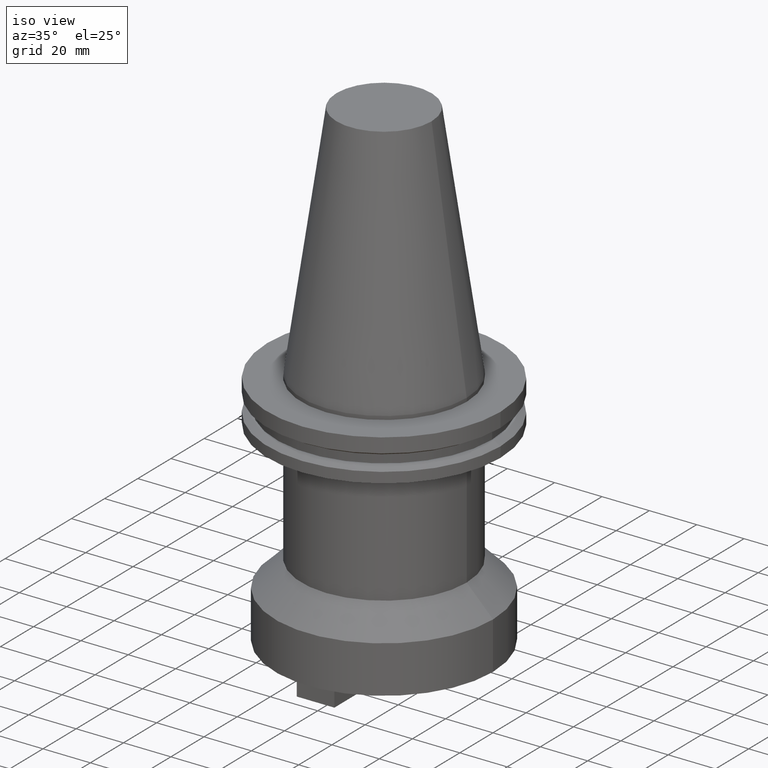
[diagram: clean part render]
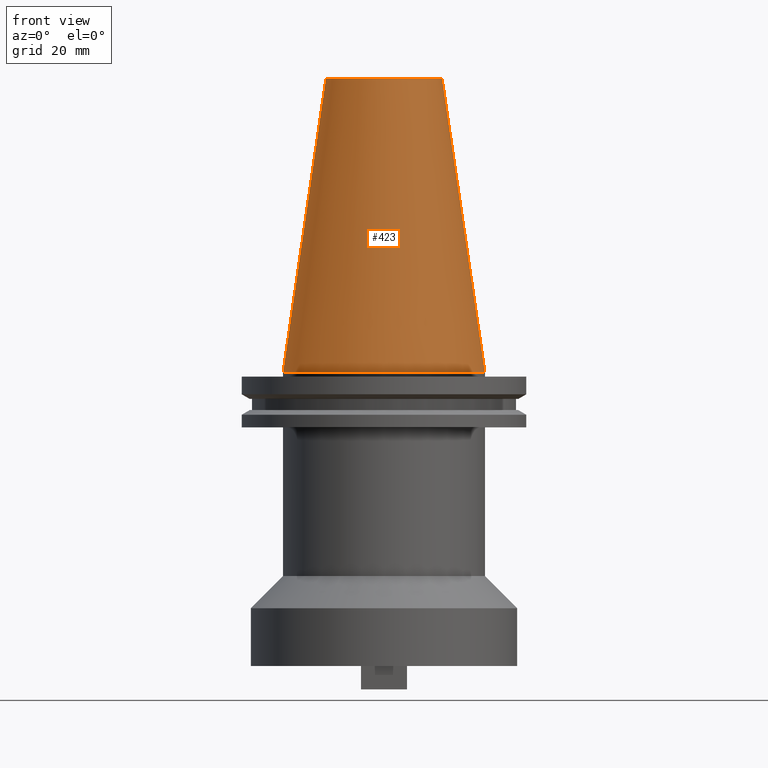
[diagram: tour spotlight — one face highlighted and labeled with its STEP entity id]
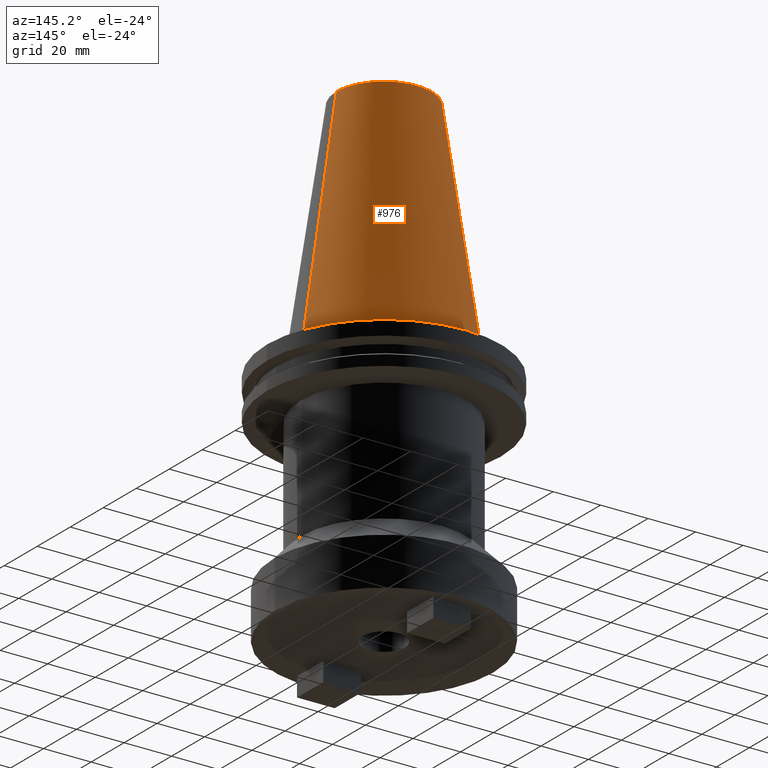
[diagram: tour spotlight — one face highlighted and labeled with its STEP entity id]
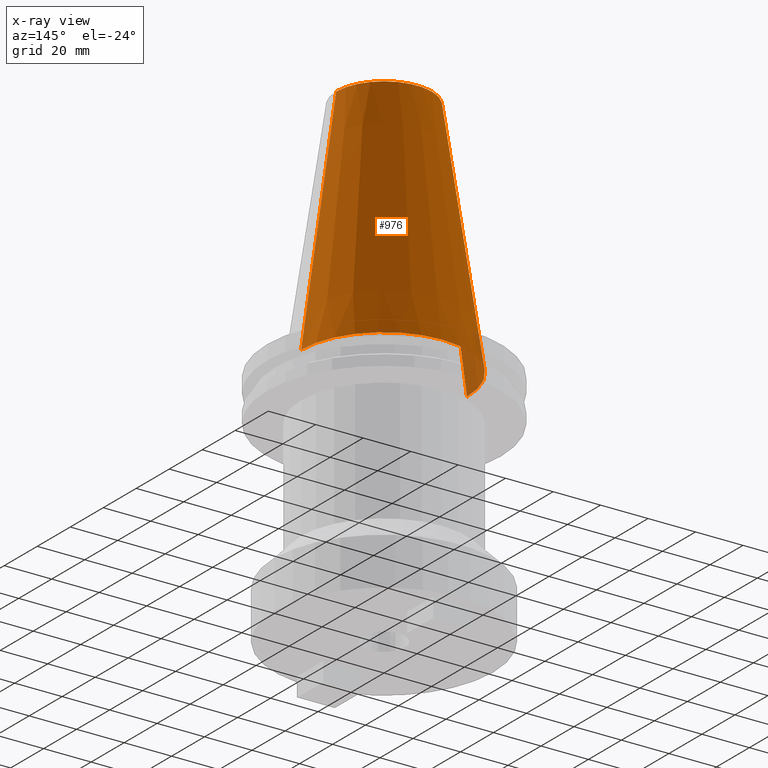
[diagram: x-ray of the same camera — body ghosted, this tour face saturated]
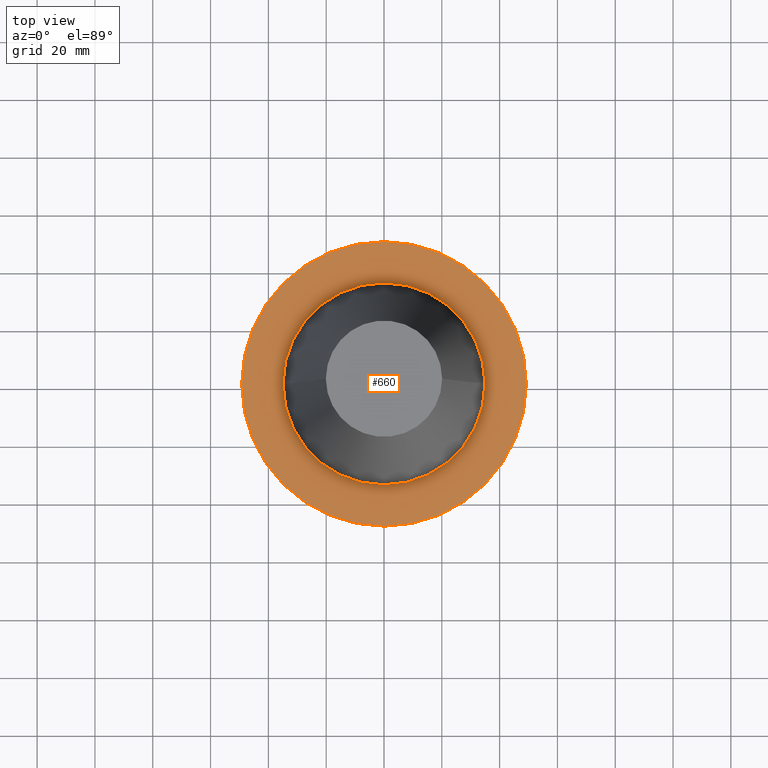
[diagram: tour spotlight — one face highlighted and labeled with its STEP entity id]
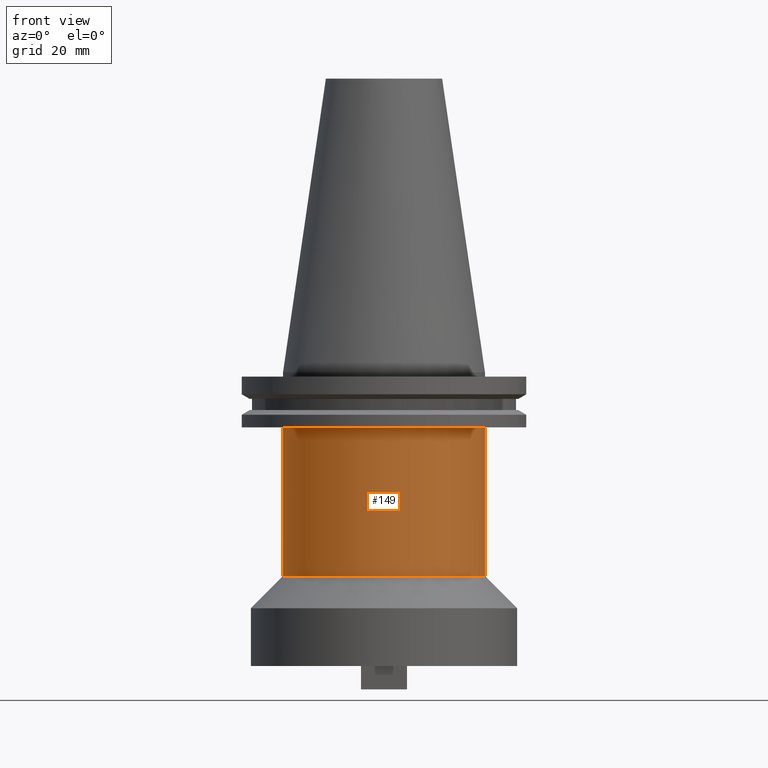
[diagram: tour spotlight — one face highlighted and labeled with its STEP entity id]
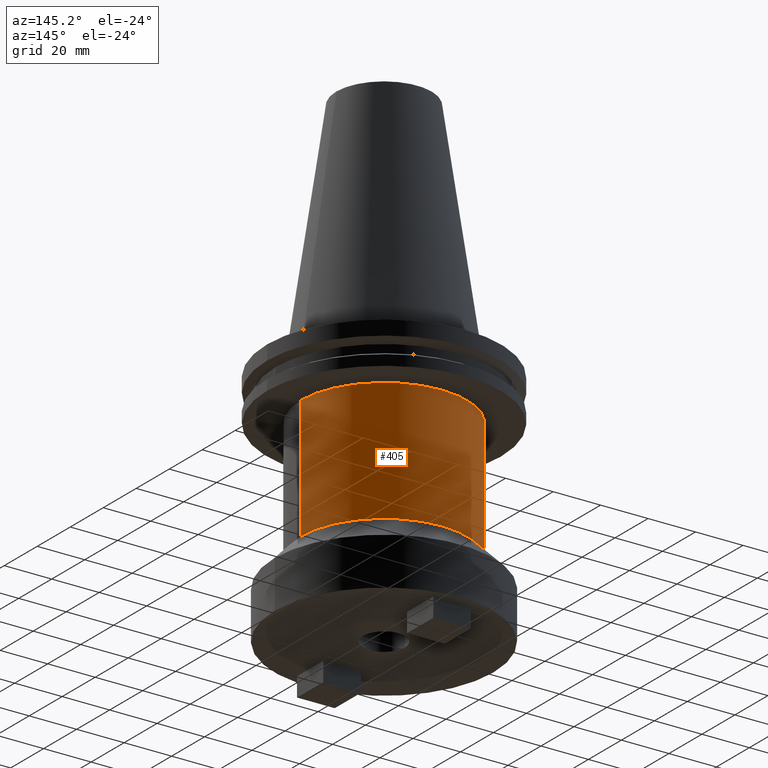
[diagram: tour spotlight — one face highlighted and labeled with its STEP entity id]
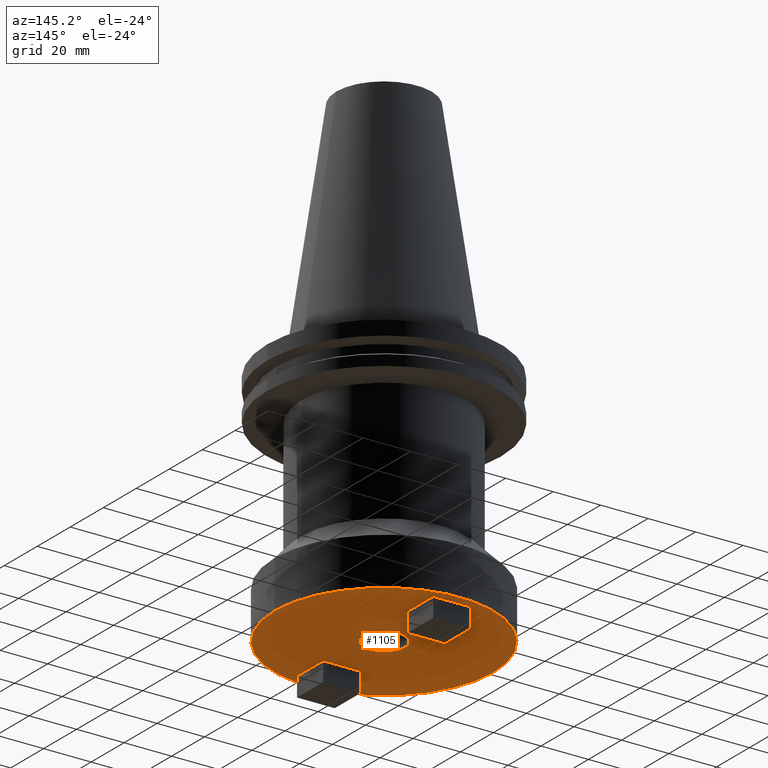
[diagram: tour spotlight — one face highlighted and labeled with its STEP entity id]
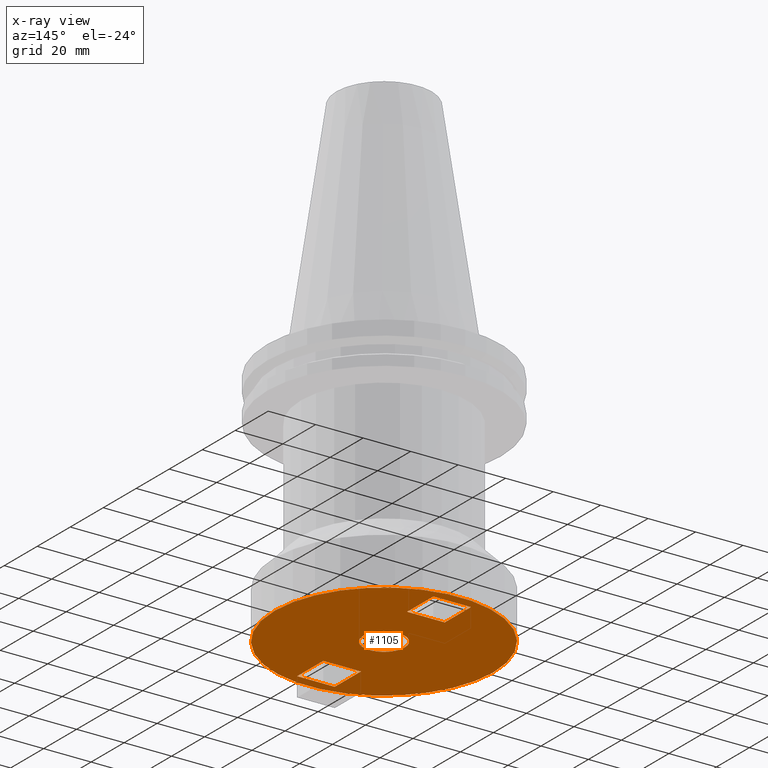
[diagram: x-ray of the same camera — body ghosted, this tour face saturated]
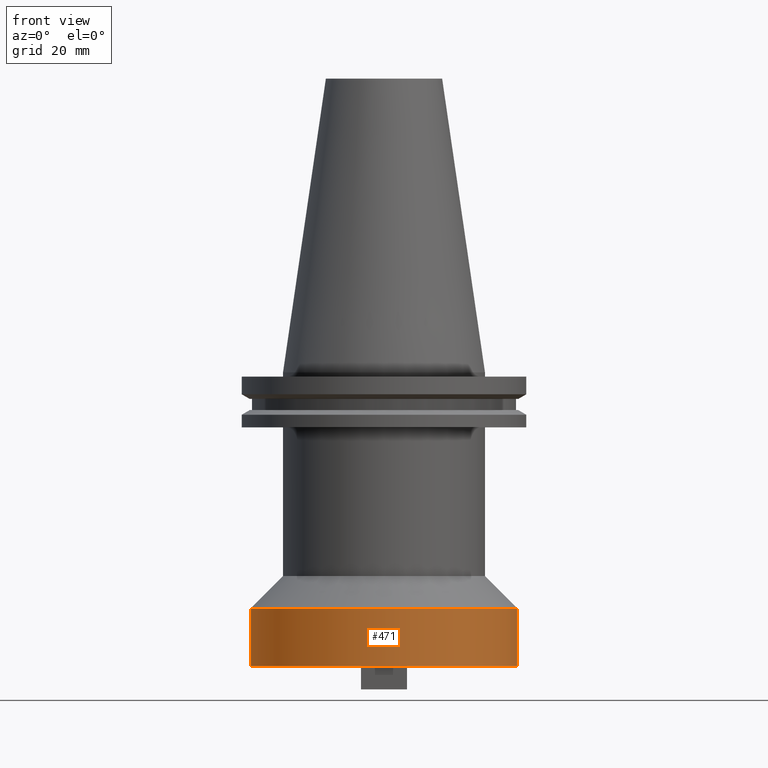
[diagram: tour spotlight — one face highlighted and labeled with its STEP entity id]
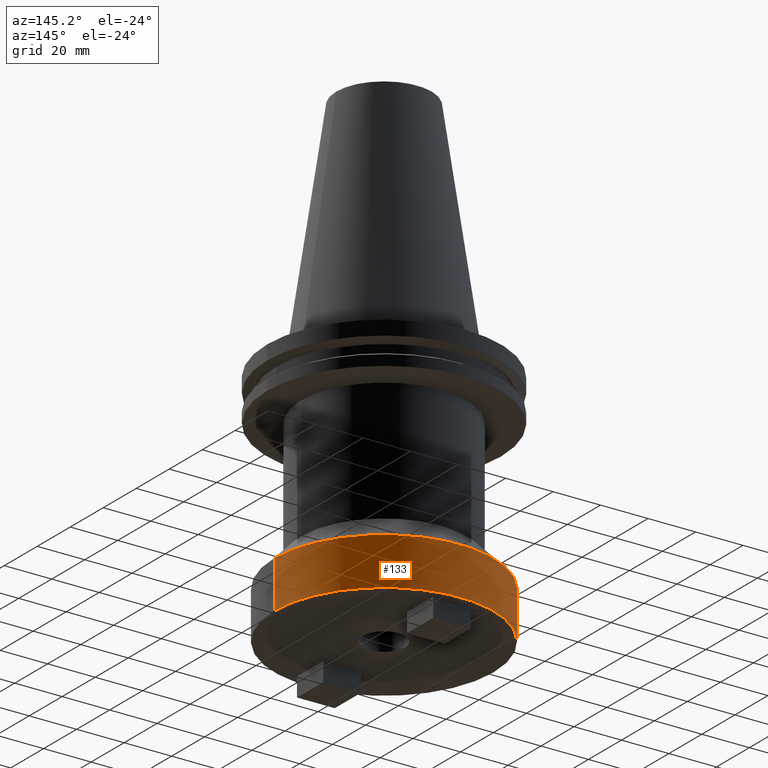
[diagram: tour spotlight — one face highlighted and labeled with its STEP entity id]
A machine part: a face-by-face anatomy tour. The part has 39 B-rep faces; the first image is the clean iso view, then the 8 largest visible faces are spotlighted one at a time (largest first), each with its STEP entity span.

Face 1 — front view, entity #423. In plain terms, the highlighted conical surface has half-angle 8.297 deg.
Definition (entity closure, byte-faithful):
#9 = CARTESIAN_POINT ( 'NONE',  ( -34.92499999999999005, 0.000000000000000000, 0.000000000000000000 ) ) ;
#84 = VECTOR ( 'NONE', #991, 999.9999999999998863 ) ;
#90 = CARTESIAN_POINT ( 'NONE',  ( 34.92499999999999005, 4.277078946022130098E-15, 0.000000000000000000 ) ) ;
#148 = LINE ( 'NONE', #238, #456 ) ;
#161 = ORIENTED_EDGE ( 'NONE', *, *, #914, .T. ) ;
#169 = DIRECTION ( 'NONE',  ( 1.000000000000000000, 0.000000000000000000, 0.000000000000000000 ) ) ;
#193 = AXIS2_PLACEMENT_3D ( 'NONE', #1067, #725, #1048 ) ;
#200 = VERTEX_POINT ( 'NONE', #90 ) ;
#227 = CIRCLE ( 'NONE', #488, 20.10819343178871321 ) ;
#238 = CARTESIAN_POINT ( 'NONE',  ( 34.92499999999999005, 4.277078946022130098E-15, 0.000000000000000000 ) ) ;
#319 = CARTESIAN_POINT ( 'NONE',  ( 0.000000000000000000, 0.000000000000000000, 0.000000000000000000 ) ) ;
#332 = DIRECTION ( 'NONE',  ( 0.1443082272672999988, 1.767266086135277066E-17, -0.9895327864921755756 ) ) ;
#341 = CARTESIAN_POINT ( 'NONE',  ( -20.10819343178871321, 0.000000000000000000, 101.5999999999999801 ) ) ;
#350 = ORIENTED_EDGE ( 'NONE', *, *, #729, .F. ) ;
#365 = AXIS2_PLACEMENT_3D ( 'NONE', #319, #575, #916 ) ;
#413 = FACE_OUTER_BOUND ( 'NONE', #454, .T. ) ;
#423 = ADVANCED_FACE ( 'NONE', ( #413 ), #847, .T. ) ;
#454 = EDGE_LOOP ( 'NONE', ( #1047, #350, #161, #682 ) ) ;
#456 = VECTOR ( 'NONE', #332, 999.9999999999998863 ) ;
#469 = VERTEX_POINT ( 'NONE', #9 ) ;
#488 = AXIS2_PLACEMENT_3D ( 'NONE', #602, #941, #169 ) ;
#568 = CARTESIAN_POINT ( 'NONE',  ( -34.92499999999999005, 0.000000000000000000, 0.000000000000000000 ) ) ;
#575 = DIRECTION ( 'NONE',  ( 0.000000000000000000, 0.000000000000000000, -1.000000000000000000 ) ) ;
#602 = CARTESIAN_POINT ( 'NONE',  ( 0.000000000000000000, 0.000000000000000000, 101.5999999999999801 ) ) ;
#625 = EDGE_CURVE ( 'NONE', #713, #200, #148, .T. ) ;
#682 = ORIENTED_EDGE ( 'NONE', *, *, #823, .T. ) ;
#713 = VERTEX_POINT ( 'NONE', #1030 ) ;
#725 = DIRECTION ( 'NONE',  ( -0.000000000000000000, -0.000000000000000000, 1.000000000000000000 ) ) ;
#729 = EDGE_CURVE ( 'NONE', #1108, #713, #227, .T. ) ;
#736 = CIRCLE ( 'NONE', #193, 34.92499999999999005 ) ;
#820 = LINE ( 'NONE', #568, #84 ) ;
#823 = EDGE_CURVE ( 'NONE', #469, #200, #736, .T. ) ;
#847 = CONICAL_SURFACE ( 'NONE', #365, 34.92499999999999005, 0.1448138465474119452 ) ;
#914 = EDGE_CURVE ( 'NONE', #1108, #469, #820, .T. ) ;
#916 = DIRECTION ( 'NONE',  ( -1.000000000000000000, 0.000000000000000000, 0.000000000000000000 ) ) ;
#941 = DIRECTION ( 'NONE',  ( -0.000000000000000000, -0.000000000000000000, 1.000000000000000000 ) ) ;
#991 = DIRECTION ( 'NONE',  ( -0.1443082272672999988, 0.000000000000000000, -0.9895327864921755756 ) ) ;
#1030 = CARTESIAN_POINT ( 'NONE',  ( 20.10819343178871321, 3.369811209154858606E-15, 101.5999999999999801 ) ) ;
#1047 = ORIENTED_EDGE ( 'NONE', *, *, #625, .F. ) ;
#1048 = DIRECTION ( 'NONE',  ( 1.000000000000000000, 0.000000000000000000, 0.000000000000000000 ) ) ;
#1067 = CARTESIAN_POINT ( 'NONE',  ( 0.000000000000000000, 0.000000000000000000, 0.000000000000000000 ) ) ;
#1108 = VERTEX_POINT ( 'NONE', #341 ) ;

Face 2 — auxiliary view, entity #976. An x-ray twin of the same camera follows (body ghosted, this face saturated) — the face is partly hidden behind the body. In plain terms, the highlighted conical surface has half-angle 8.297 deg.
Definition (entity closure, byte-faithful):
#9 = CARTESIAN_POINT ( 'NONE',  ( -34.92499999999999005, 0.000000000000000000, 0.000000000000000000 ) ) ;
#47 = FACE_OUTER_BOUND ( 'NONE', #700, .T. ) ;
#84 = VECTOR ( 'NONE', #991, 999.9999999999998863 ) ;
#89 = EDGE_CURVE ( 'NONE', #200, #469, #254, .T. ) ;
#90 = CARTESIAN_POINT ( 'NONE',  ( 34.92499999999999005, 4.277078946022130098E-15, 0.000000000000000000 ) ) ;
#118 = ORIENTED_EDGE ( 'NONE', *, *, #89, .T. ) ;
#148 = LINE ( 'NONE', #238, #456 ) ;
#172 = AXIS2_PLACEMENT_3D ( 'NONE', #829, #404, #651 ) ;
#200 = VERTEX_POINT ( 'NONE', #90 ) ;
#238 = CARTESIAN_POINT ( 'NONE',  ( 34.92499999999999005, 4.277078946022130098E-15, 0.000000000000000000 ) ) ;
#254 = CIRCLE ( 'NONE', #564, 34.92499999999999005 ) ;
#258 = DIRECTION ( 'NONE',  ( 1.000000000000000000, 0.000000000000000000, 0.000000000000000000 ) ) ;
#291 = DIRECTION ( 'NONE',  ( -0.000000000000000000, -0.000000000000000000, 1.000000000000000000 ) ) ;
#332 = DIRECTION ( 'NONE',  ( 0.1443082272672999988, 1.767266086135277066E-17, -0.9895327864921755756 ) ) ;
#341 = CARTESIAN_POINT ( 'NONE',  ( -20.10819343178871321, 0.000000000000000000, 101.5999999999999801 ) ) ;
#397 = ORIENTED_EDGE ( 'NONE', *, *, #914, .F. ) ;
#404 = DIRECTION ( 'NONE',  ( 0.000000000000000000, 0.000000000000000000, -1.000000000000000000 ) ) ;
#445 = CARTESIAN_POINT ( 'NONE',  ( 0.000000000000000000, 0.000000000000000000, 101.5999999999999801 ) ) ;
#456 = VECTOR ( 'NONE', #332, 999.9999999999998863 ) ;
#469 = VERTEX_POINT ( 'NONE', #9 ) ;
#564 = AXIS2_PLACEMENT_3D ( 'NONE', #960, #291, #884 ) ;
#568 = CARTESIAN_POINT ( 'NONE',  ( -34.92499999999999005, 0.000000000000000000, 0.000000000000000000 ) ) ;
#625 = EDGE_CURVE ( 'NONE', #713, #200, #148, .T. ) ;
#651 = DIRECTION ( 'NONE',  ( -1.000000000000000000, 0.000000000000000000, 0.000000000000000000 ) ) ;
#700 = EDGE_LOOP ( 'NONE', ( #938, #1096, #118, #397 ) ) ;
#713 = VERTEX_POINT ( 'NONE', #1030 ) ;
#716 = CIRCLE ( 'NONE', #968, 20.10819343178871321 ) ;
#728 = EDGE_CURVE ( 'NONE', #713, #1108, #716, .T. ) ;
#785 = DIRECTION ( 'NONE',  ( -0.000000000000000000, -0.000000000000000000, 1.000000000000000000 ) ) ;
#820 = LINE ( 'NONE', #568, #84 ) ;
#829 = CARTESIAN_POINT ( 'NONE',  ( 0.000000000000000000, 0.000000000000000000, 0.000000000000000000 ) ) ;
#884 = DIRECTION ( 'NONE',  ( 1.000000000000000000, 0.000000000000000000, 0.000000000000000000 ) ) ;
#898 = CONICAL_SURFACE ( 'NONE', #172, 34.92499999999999005, 0.1448138465474119452 ) ;
#914 = EDGE_CURVE ( 'NONE', #1108, #469, #820, .T. ) ;
#938 = ORIENTED_EDGE ( 'NONE', *, *, #728, .F. ) ;
#960 = CARTESIAN_POINT ( 'NONE',  ( 0.000000000000000000, 0.000000000000000000, 0.000000000000000000 ) ) ;
#968 = AXIS2_PLACEMENT_3D ( 'NONE', #445, #785, #258 ) ;
#976 = ADVANCED_FACE ( 'NONE', ( #47 ), #898, .T. ) ;
#991 = DIRECTION ( 'NONE',  ( -0.1443082272672999988, 0.000000000000000000, -0.9895327864921755756 ) ) ;
#1030 = CARTESIAN_POINT ( 'NONE',  ( 20.10819343178871321, 3.369811209154858606E-15, 101.5999999999999801 ) ) ;
#1096 = ORIENTED_EDGE ( 'NONE', *, *, #625, .T. ) ;
#1108 = VERTEX_POINT ( 'NONE', #341 ) ;

Face 3 — top view, entity #660. In plain terms, the highlighted planar face has unit normal (0, 0, -1).
Definition (entity closure, byte-faithful):
#1 = DIRECTION ( 'NONE',  ( -0.000000000000000000, -0.000000000000000000, 1.000000000000000000 ) ) ;
#5 = AXIS2_PLACEMENT_3D ( 'NONE', #429, #869, #590 ) ;
#8 = FACE_BOUND ( 'NONE', #1106, .T. ) ;
#36 = VERTEX_POINT ( 'NONE', #1045 ) ;
#62 = ORIENTED_EDGE ( 'NONE', *, *, #957, .T. ) ;
#78 = EDGE_LOOP ( 'NONE', ( #62, #1095 ) ) ;
#93 = CARTESIAN_POINT ( 'NONE',  ( 0.000000000000000000, 0.000000000000000000, -1.499999999999987566 ) ) ;
#139 = AXIS2_PLACEMENT_3D ( 'NONE', #257, #1029, #946 ) ;
#154 = AXIS2_PLACEMENT_3D ( 'NONE', #93, #1, #949 ) ;
#170 = DIRECTION ( 'NONE',  ( 1.000000000000000000, 0.000000000000000000, 0.000000000000000000 ) ) ;
#257 = CARTESIAN_POINT ( 'NONE',  ( 0.000000000000000000, 0.000000000000000000, -1.499999999999987566 ) ) ;
#259 = DIRECTION ( 'NONE',  ( -0.000000000000000000, -0.000000000000000000, 1.000000000000000000 ) ) ;
#322 = DIRECTION ( 'NONE',  ( -0.000000000000000000, -0.000000000000000000, 1.000000000000000000 ) ) ;
#402 = AXIS2_PLACEMENT_3D ( 'NONE', #905, #322, #822 ) ;
#429 = CARTESIAN_POINT ( 'NONE',  ( 0.000000000000000000, 49.21499999999999631, -1.499999999999992895 ) ) ;
#443 = VERTEX_POINT ( 'NONE', #603 ) ;
#505 = CIRCLE ( 'NONE', #546, 34.92499999999999005 ) ;
#515 = CARTESIAN_POINT ( 'NONE',  ( 34.92499999999999005, 0.000000000000000000, -1.499999999999987566 ) ) ;
#517 = ORIENTED_EDGE ( 'NONE', *, *, #720, .F. ) ;
#520 = EDGE_CURVE ( 'NONE', #694, #443, #505, .T. ) ;
#546 = AXIS2_PLACEMENT_3D ( 'NONE', #686, #259, #170 ) ;
#590 = DIRECTION ( 'NONE',  ( -1.000000000000000000, 0.000000000000000000, -0.000000000000000000 ) ) ;
#603 = CARTESIAN_POINT ( 'NONE',  ( -34.92499999999999005, 4.277078946022130098E-15, -1.499999999999987566 ) ) ;
#616 = PLANE ( 'NONE',  #5 ) ;
#629 = CIRCLE ( 'NONE', #139, 49.21499999999999631 ) ;
#660 = ADVANCED_FACE ( 'NONE', ( #8, #852 ), #616, .F. ) ;
#663 = CIRCLE ( 'NONE', #154, 34.92499999999999005 ) ;
#686 = CARTESIAN_POINT ( 'NONE',  ( 0.000000000000000000, 0.000000000000000000, -1.499999999999987566 ) ) ;
#694 = VERTEX_POINT ( 'NONE', #515 ) ;
#720 = EDGE_CURVE ( 'NONE', #443, #694, #663, .T. ) ;
#822 = DIRECTION ( 'NONE',  ( 1.000000000000000000, 0.000000000000000000, 0.000000000000000000 ) ) ;
#846 = ORIENTED_EDGE ( 'NONE', *, *, #520, .F. ) ;
#852 = FACE_OUTER_BOUND ( 'NONE', #78, .T. ) ;
#859 = VERTEX_POINT ( 'NONE', #889 ) ;
#869 = DIRECTION ( 'NONE',  ( 0.000000000000000000, 0.000000000000000000, -1.000000000000000000 ) ) ;
#881 = CIRCLE ( 'NONE', #402, 49.21499999999999631 ) ;
#889 = CARTESIAN_POINT ( 'NONE',  ( 49.21499999999999631, 0.000000000000000000, -1.499999999999987566 ) ) ;
#905 = CARTESIAN_POINT ( 'NONE',  ( 0.000000000000000000, 0.000000000000000000, -1.499999999999987566 ) ) ;
#946 = DIRECTION ( 'NONE',  ( 1.000000000000000000, 0.000000000000000000, 0.000000000000000000 ) ) ;
#949 = DIRECTION ( 'NONE',  ( 1.000000000000000000, 0.000000000000000000, 0.000000000000000000 ) ) ;
#957 = EDGE_CURVE ( 'NONE', #859, #36, #881, .T. ) ;
#1029 = DIRECTION ( 'NONE',  ( -0.000000000000000000, -0.000000000000000000, 1.000000000000000000 ) ) ;
#1044 = EDGE_CURVE ( 'NONE', #36, #859, #629, .T. ) ;
#1045 = CARTESIAN_POINT ( 'NONE',  ( -49.21499999999999631, 6.027099222003697826E-15, -1.499999999999987566 ) ) ;
#1095 = ORIENTED_EDGE ( 'NONE', *, *, #1044, .T. ) ;
#1106 = EDGE_LOOP ( 'NONE', ( #846, #517 ) ) ;

Face 4 — front view, entity #149. In plain terms, the highlighted cylindrical surface (partial cylindrical patch) has radius 34.925 mm, axis along (-0, -0, 1).
Definition (entity closure, byte-faithful):
#55 = DIRECTION ( 'NONE',  ( 1.000000000000000000, 0.000000000000000000, 0.000000000000000000 ) ) ;
#64 = LINE ( 'NONE', #915, #931 ) ;
#66 = VECTOR ( 'NONE', #715, 1000.000000000000000 ) ;
#74 = CARTESIAN_POINT ( 'NONE',  ( -34.92499999999999716, 4.277078946022130887E-15, -19.04999999999999716 ) ) ;
#99 = CARTESIAN_POINT ( 'NONE',  ( -34.92499999999999716, 4.277078946022130887E-15, 101.5999999999999943 ) ) ;
#149 = ADVANCED_FACE ( 'NONE', ( #943 ), #264, .T. ) ;
#150 = VERTEX_POINT ( 'NONE', #441 ) ;
#175 = CARTESIAN_POINT ( 'NONE',  ( -34.92499999999999716, 4.277078946022130887E-15, -70.47499999999999432 ) ) ;
#197 = LINE ( 'NONE', #99, #66 ) ;
#225 = DIRECTION ( 'NONE',  ( -0.000000000000000000, -0.000000000000000000, 1.000000000000000000 ) ) ;
#230 = CIRCLE ( 'NONE', #863, 34.92499999999999716 ) ;
#235 = EDGE_CURVE ( 'NONE', #1032, #150, #1019, .T. ) ;
#241 = ORIENTED_EDGE ( 'NONE', *, *, #235, .T. ) ;
#264 = CYLINDRICAL_SURFACE ( 'NONE', #461, 34.92499999999999716 ) ;
#349 = CARTESIAN_POINT ( 'NONE',  ( 0.000000000000000000, 0.000000000000000000, -19.04999999999999716 ) ) ;
#441 = CARTESIAN_POINT ( 'NONE',  ( 34.92499999999999716, 0.000000000000000000, -70.47499999999999432 ) ) ;
#461 = AXIS2_PLACEMENT_3D ( 'NONE', #611, #536, #801 ) ;
#496 = EDGE_CURVE ( 'NONE', #1102, #581, #230, .T. ) ;
#536 = DIRECTION ( 'NONE',  ( -0.000000000000000000, -0.000000000000000000, 1.000000000000000000 ) ) ;
#581 = VERTEX_POINT ( 'NONE', #835 ) ;
#600 = EDGE_CURVE ( 'NONE', #150, #581, #64, .T. ) ;
#611 = CARTESIAN_POINT ( 'NONE',  ( 0.000000000000000000, 0.000000000000000000, 101.5999999999999943 ) ) ;
#617 = DIRECTION ( 'NONE',  ( -0.000000000000000000, -0.000000000000000000, 1.000000000000000000 ) ) ;
#620 = EDGE_LOOP ( 'NONE', ( #927, #241, #758, #626 ) ) ;
#626 = ORIENTED_EDGE ( 'NONE', *, *, #496, .F. ) ;
#715 = DIRECTION ( 'NONE',  ( -0.000000000000000000, -0.000000000000000000, 1.000000000000000000 ) ) ;
#726 = CARTESIAN_POINT ( 'NONE',  ( 0.000000000000000000, 0.000000000000000000, -70.47499999999999432 ) ) ;
#741 = DIRECTION ( 'NONE',  ( -0.000000000000000000, -0.000000000000000000, 1.000000000000000000 ) ) ;
#758 = ORIENTED_EDGE ( 'NONE', *, *, #600, .T. ) ;
#801 = DIRECTION ( 'NONE',  ( 1.000000000000000000, 0.000000000000000000, 0.000000000000000000 ) ) ;
#832 = AXIS2_PLACEMENT_3D ( 'NONE', #726, #225, #55 ) ;
#835 = CARTESIAN_POINT ( 'NONE',  ( 34.92499999999999716, 0.000000000000000000, -19.04999999999999716 ) ) ;
#850 = EDGE_CURVE ( 'NONE', #1032, #1102, #197, .T. ) ;
#863 = AXIS2_PLACEMENT_3D ( 'NONE', #349, #617, #864 ) ;
#864 = DIRECTION ( 'NONE',  ( 1.000000000000000000, 0.000000000000000000, 0.000000000000000000 ) ) ;
#915 = CARTESIAN_POINT ( 'NONE',  ( 34.92499999999999716, 0.000000000000000000, 101.5999999999999943 ) ) ;
#927 = ORIENTED_EDGE ( 'NONE', *, *, #850, .F. ) ;
#931 = VECTOR ( 'NONE', #741, 1000.000000000000000 ) ;
#943 = FACE_OUTER_BOUND ( 'NONE', #620, .T. ) ;
#1019 = CIRCLE ( 'NONE', #832, 34.92499999999999716 ) ;
#1032 = VERTEX_POINT ( 'NONE', #175 ) ;
#1102 = VERTEX_POINT ( 'NONE', #74 ) ;

Face 5 — auxiliary view, entity #405. In plain terms, the highlighted cylindrical surface (partial cylindrical patch) has radius 34.925 mm, axis along (-0, -0, 1).
Definition (entity closure, byte-faithful):
#16 = EDGE_LOOP ( 'NONE', ( #763, #644, #320, #853 ) ) ;
#64 = LINE ( 'NONE', #915, #931 ) ;
#66 = VECTOR ( 'NONE', #715, 1000.000000000000000 ) ;
#74 = CARTESIAN_POINT ( 'NONE',  ( -34.92499999999999716, 4.277078946022130887E-15, -19.04999999999999716 ) ) ;
#99 = CARTESIAN_POINT ( 'NONE',  ( -34.92499999999999716, 4.277078946022130887E-15, 101.5999999999999943 ) ) ;
#105 = AXIS2_PLACEMENT_3D ( 'NONE', #499, #252, #746 ) ;
#126 = AXIS2_PLACEMENT_3D ( 'NONE', #1013, #347, #932 ) ;
#150 = VERTEX_POINT ( 'NONE', #441 ) ;
#175 = CARTESIAN_POINT ( 'NONE',  ( -34.92499999999999716, 4.277078946022130887E-15, -70.47499999999999432 ) ) ;
#197 = LINE ( 'NONE', #99, #66 ) ;
#234 = DIRECTION ( 'NONE',  ( 1.000000000000000000, 0.000000000000000000, 0.000000000000000000 ) ) ;
#252 = DIRECTION ( 'NONE',  ( -0.000000000000000000, -0.000000000000000000, 1.000000000000000000 ) ) ;
#320 = ORIENTED_EDGE ( 'NONE', *, *, #1079, .F. ) ;
#347 = DIRECTION ( 'NONE',  ( -0.000000000000000000, -0.000000000000000000, 1.000000000000000000 ) ) ;
#403 = CIRCLE ( 'NONE', #126, 34.92499999999999716 ) ;
#405 = ADVANCED_FACE ( 'NONE', ( #925 ), #766, .T. ) ;
#441 = CARTESIAN_POINT ( 'NONE',  ( 34.92499999999999716, 0.000000000000000000, -70.47499999999999432 ) ) ;
#499 = CARTESIAN_POINT ( 'NONE',  ( 0.000000000000000000, 0.000000000000000000, 101.5999999999999943 ) ) ;
#542 = CIRCLE ( 'NONE', #945, 34.92499999999999716 ) ;
#581 = VERTEX_POINT ( 'NONE', #835 ) ;
#600 = EDGE_CURVE ( 'NONE', #150, #581, #64, .T. ) ;
#644 = ORIENTED_EDGE ( 'NONE', *, *, #850, .T. ) ;
#715 = DIRECTION ( 'NONE',  ( -0.000000000000000000, -0.000000000000000000, 1.000000000000000000 ) ) ;
#740 = DIRECTION ( 'NONE',  ( -0.000000000000000000, -0.000000000000000000, 1.000000000000000000 ) ) ;
#741 = DIRECTION ( 'NONE',  ( -0.000000000000000000, -0.000000000000000000, 1.000000000000000000 ) ) ;
#746 = DIRECTION ( 'NONE',  ( 1.000000000000000000, 0.000000000000000000, 0.000000000000000000 ) ) ;
#763 = ORIENTED_EDGE ( 'NONE', *, *, #983, .T. ) ;
#766 = CYLINDRICAL_SURFACE ( 'NONE', #105, 34.92499999999999716 ) ;
#835 = CARTESIAN_POINT ( 'NONE',  ( 34.92499999999999716, 0.000000000000000000, -19.04999999999999716 ) ) ;
#850 = EDGE_CURVE ( 'NONE', #1032, #1102, #197, .T. ) ;
#853 = ORIENTED_EDGE ( 'NONE', *, *, #600, .F. ) ;
#915 = CARTESIAN_POINT ( 'NONE',  ( 34.92499999999999716, 0.000000000000000000, 101.5999999999999943 ) ) ;
#925 = FACE_OUTER_BOUND ( 'NONE', #16, .T. ) ;
#931 = VECTOR ( 'NONE', #741, 1000.000000000000000 ) ;
#932 = DIRECTION ( 'NONE',  ( 1.000000000000000000, 0.000000000000000000, 0.000000000000000000 ) ) ;
#945 = AXIS2_PLACEMENT_3D ( 'NONE', #1081, #740, #234 ) ;
#983 = EDGE_CURVE ( 'NONE', #150, #1032, #542, .T. ) ;
#1013 = CARTESIAN_POINT ( 'NONE',  ( 0.000000000000000000, 0.000000000000000000, -19.04999999999999716 ) ) ;
#1032 = VERTEX_POINT ( 'NONE', #175 ) ;
#1079 = EDGE_CURVE ( 'NONE', #581, #1102, #403, .T. ) ;
#1081 = CARTESIAN_POINT ( 'NONE',  ( 0.000000000000000000, 0.000000000000000000, -70.47499999999999432 ) ) ;
#1102 = VERTEX_POINT ( 'NONE', #74 ) ;

Face 6 — auxiliary view, entity #1105. An x-ray twin of the same camera follows (body ghosted, this face saturated) — the face is partly hidden behind the body. In plain terms, the highlighted planar face has unit normal (0, -0, 1).
Definition (entity closure, byte-faithful):
#3 = VECTOR ( 'NONE', #907, 1000.000000000000000 ) ;
#11 = ORIENTED_EDGE ( 'NONE', *, *, #246, .T. ) ;
#28 = DIRECTION ( 'NONE',  ( 1.000000000000000000, 0.000000000000000000, 0.000000000000000000 ) ) ;
#32 = LINE ( 'NONE', #43, #571 ) ;
#43 = CARTESIAN_POINT ( 'NONE',  ( 7.939999999999995950, 1.734723475976805714E-15, -101.5999999999999943 ) ) ;
#56 = EDGE_CURVE ( 'NONE', #442, #776, #101, .T. ) ;
#69 = EDGE_LOOP ( 'NONE', ( #525, #11, #593, #104 ) ) ;
#79 = CARTESIAN_POINT ( 'NONE',  ( -1.803762848572357308E-14, -41.27999999999998693, -101.5999999999999943 ) ) ;
#101 = LINE ( 'NONE', #530, #1063 ) ;
#104 = ORIENTED_EDGE ( 'NONE', *, *, #1052, .F. ) ;
#109 = VERTEX_POINT ( 'NONE', #276 ) ;
#116 = DIRECTION ( 'NONE',  ( -1.092395136005546426E-16, -1.000000000000000000, 0.000000000000000000 ) ) ;
#125 = CARTESIAN_POINT ( 'NONE',  ( -7.940000000000009273, 25.39999999999998792, -101.5999999999999943 ) ) ;
#129 = DIRECTION ( 'NONE',  ( -0.000000000000000000, -0.000000000000000000, 1.000000000000000000 ) ) ;
#131 = LINE ( 'NONE', #971, #156 ) ;
#156 = VECTOR ( 'NONE', #116, 1000.000000000000000 ) ;
#160 = CARTESIAN_POINT ( 'NONE',  ( 7.939999999999990621, -41.28000000000000114, -101.5999999999999943 ) ) ;
#168 = DIRECTION ( 'NONE',  ( 0.000000000000000000, -0.000000000000000000, 1.000000000000000000 ) ) ;
#177 = CARTESIAN_POINT ( 'NONE',  ( 0.000000000000000000, 0.000000000000000000, -101.5999999999999943 ) ) ;
#207 = LINE ( 'NONE', #980, #3 ) ;
#213 = ORIENTED_EDGE ( 'NONE', *, *, #670, .T. ) ;
#222 = ORIENTED_EDGE ( 'NONE', *, *, #791, .T. ) ;
#246 = EDGE_CURVE ( 'NONE', #767, #109, #207, .T. ) ;
#248 = AXIS2_PLACEMENT_3D ( 'NONE', #541, #800, #28 ) ;
#276 = CARTESIAN_POINT ( 'NONE',  ( -7.940000000000009273, -25.39999999999998437, -101.5999999999999943 ) ) ;
#293 = EDGE_CURVE ( 'NONE', #873, #501, #326, .T. ) ;
#294 = VECTOR ( 'NONE', #424, 1000.000000000000000 ) ;
#299 = CARTESIAN_POINT ( 'NONE',  ( 0.000000000000000000, 0.000000000000000000, -101.5999999999999943 ) ) ;
#304 = CARTESIAN_POINT ( 'NONE',  ( 7.939999999999994174, -25.39999999999999147, -101.5999999999999943 ) ) ;
#310 = CIRCLE ( 'NONE', #792, 8.729999999999995097 ) ;
#326 = CIRCLE ( 'NONE', #650, 8.729999999999995097 ) ;
#342 = CARTESIAN_POINT ( 'NONE',  ( 7.939999999999987068, 41.27999999999999403, -101.5999999999999943 ) ) ;
#348 = CARTESIAN_POINT ( 'NONE',  ( -1.803762848572357623E-14, 41.27999999999998693, -101.5999999999999943 ) ) ;
#371 = VERTEX_POINT ( 'NONE', #160 ) ;
#377 = EDGE_LOOP ( 'NONE', ( #1059, #463 ) ) ;
#382 = VERTEX_POINT ( 'NONE', #679 ) ;
#388 = CARTESIAN_POINT ( 'NONE',  ( 0.000000000000000000, 0.000000000000000000, -101.5999999999999943 ) ) ;
#415 = EDGE_LOOP ( 'NONE', ( #213, #974, #750, #885 ) ) ;
#424 = DIRECTION ( 'NONE',  ( 2.184790272011092360E-16, 1.000000000000000000, 0.000000000000000000 ) ) ;
#427 = FACE_BOUND ( 'NONE', #69, .T. ) ;
#434 = CARTESIAN_POINT ( 'NONE',  ( -8.729999999999995097, 1.069116655655638782E-15, -101.5999999999999943 ) ) ;
#440 = CARTESIAN_POINT ( 'NONE',  ( 7.939999999999990621, 25.39999999999998792, -101.5999999999999943 ) ) ;
#442 = VERTEX_POINT ( 'NONE', #440 ) ;
#455 = ORIENTED_EDGE ( 'NONE', *, *, #293, .T. ) ;
#459 = DIRECTION ( 'NONE',  ( -0.000000000000000000, -0.000000000000000000, 1.000000000000000000 ) ) ;
#463 = ORIENTED_EDGE ( 'NONE', *, *, #567, .F. ) ;
#501 = VERTEX_POINT ( 'NONE', #434 ) ;
#514 = EDGE_CURVE ( 'NONE', #382, #768, #950, .T. ) ;
#519 = LINE ( 'NONE', #1109, #294 ) ;
#525 = ORIENTED_EDGE ( 'NONE', *, *, #1066, .T. ) ;
#527 = LINE ( 'NONE', #348, #986 ) ;
#530 = CARTESIAN_POINT ( 'NONE',  ( 0.000000000000000000, 25.39999999999998792, -101.5999999999999943 ) ) ;
#541 = CARTESIAN_POINT ( 'NONE',  ( 0.000000000000000000, 0.000000000000000000, -101.5999999999999943 ) ) ;
#566 = DIRECTION ( 'NONE',  ( 1.000000000000000000, 0.000000000000000000, 0.000000000000000000 ) ) ;
#567 = EDGE_CURVE ( 'NONE', #768, #382, #794, .T. ) ;
#571 = VECTOR ( 'NONE', #969, 1000.000000000000000 ) ;
#572 = EDGE_CURVE ( 'NONE', #738, #776, #131, .T. ) ;
#578 = DIRECTION ( 'NONE',  ( 0.000000000000000000, 1.000000000000000000, 0.000000000000000000 ) ) ;
#589 = LINE ( 'NONE', #79, #769 ) ;
#593 = ORIENTED_EDGE ( 'NONE', *, *, #999, .F. ) ;
#601 = FACE_BOUND ( 'NONE', #415, .T. ) ;
#636 = CARTESIAN_POINT ( 'NONE',  ( 8.729999999999995097, 0.000000000000000000, -101.5999999999999943 ) ) ;
#640 = CARTESIAN_POINT ( 'NONE',  ( -7.940000000000007496, 41.27999999999998693, -101.5999999999999943 ) ) ;
#650 = AXIS2_PLACEMENT_3D ( 'NONE', #299, #129, #566 ) ;
#655 = LINE ( 'NONE', #996, #1033 ) ;
#670 = EDGE_CURVE ( 'NONE', #688, #738, #527, .T. ) ;
#679 = CARTESIAN_POINT ( 'NONE',  ( 46.04999999999999716, 0.000000000000000000, -101.5999999999999943 ) ) ;
#688 = VERTEX_POINT ( 'NONE', #342 ) ;
#692 = DIRECTION ( 'NONE',  ( -1.000000000000000000, 0.000000000000000000, 0.000000000000000000 ) ) ;
#693 = VERTEX_POINT ( 'NONE', #778 ) ;
#738 = VERTEX_POINT ( 'NONE', #640 ) ;
#750 = ORIENTED_EDGE ( 'NONE', *, *, #56, .F. ) ;
#761 = DIRECTION ( 'NONE',  ( -1.000000000000000000, -4.369580544022185705E-16, 0.000000000000000000 ) ) ;
#764 = FACE_OUTER_BOUND ( 'NONE', #377, .T. ) ;
#767 = VERTEX_POINT ( 'NONE', #304 ) ;
#768 = VERTEX_POINT ( 'NONE', #897 ) ;
#769 = VECTOR ( 'NONE', #868, 1000.000000000000000 ) ;
#773 = DIRECTION ( 'NONE',  ( 1.000000000000000000, 0.000000000000000000, 0.000000000000000000 ) ) ;
#776 = VERTEX_POINT ( 'NONE', #125 ) ;
#778 = CARTESIAN_POINT ( 'NONE',  ( -7.940000000000009273, -41.27999999999999403, -101.5999999999999943 ) ) ;
#791 = EDGE_CURVE ( 'NONE', #501, #873, #310, .T. ) ;
#792 = AXIS2_PLACEMENT_3D ( 'NONE', #388, #459, #876 ) ;
#794 = CIRCLE ( 'NONE', #248, 46.04999999999999716 ) ;
#800 = DIRECTION ( 'NONE',  ( -0.000000000000000000, -0.000000000000000000, 1.000000000000000000 ) ) ;
#830 = EDGE_CURVE ( 'NONE', #688, #442, #32, .T. ) ;
#861 = DIRECTION ( 'NONE',  ( 1.000000000000000000, 0.000000000000000000, 0.000000000000000000 ) ) ;
#868 = DIRECTION ( 'NONE',  ( -1.000000000000000000, 4.369580544022184719E-16, 0.000000000000000000 ) ) ;
#873 = VERTEX_POINT ( 'NONE', #636 ) ;
#876 = DIRECTION ( 'NONE',  ( 1.000000000000000000, 0.000000000000000000, 0.000000000000000000 ) ) ;
#885 = ORIENTED_EDGE ( 'NONE', *, *, #830, .F. ) ;
#897 = CARTESIAN_POINT ( 'NONE',  ( -46.04999999999999716, 5.639498510073560988E-15, -101.5999999999999943 ) ) ;
#907 = DIRECTION ( 'NONE',  ( -1.000000000000000000, 4.369580544022182747E-16, 0.000000000000000000 ) ) ;
#940 = CARTESIAN_POINT ( 'NONE',  ( 0.000000000000000000, 46.04999999999999716, -101.5999999999999943 ) ) ;
#947 = AXIS2_PLACEMENT_3D ( 'NONE', #940, #168, #861 ) ;
#950 = CIRCLE ( 'NONE', #1016, 46.04999999999999716 ) ;
#961 = EDGE_LOOP ( 'NONE', ( #455, #222 ) ) ;
#969 = DIRECTION ( 'NONE',  ( 2.184790272011091620E-16, -1.000000000000000000, 0.000000000000000000 ) ) ;
#971 = CARTESIAN_POINT ( 'NONE',  ( -7.940000000000012825, 8.673617379884053221E-16, -101.5999999999999943 ) ) ;
#974 = ORIENTED_EDGE ( 'NONE', *, *, #572, .T. ) ;
#980 = CARTESIAN_POINT ( 'NONE',  ( -1.109873458181633997E-14, -25.39999999999998792, -101.5999999999999943 ) ) ;
#986 = VECTOR ( 'NONE', #761, 1000.000000000000000 ) ;
#996 = CARTESIAN_POINT ( 'NONE',  ( -7.940000000000009273, 0.000000000000000000, -101.5999999999999943 ) ) ;
#999 = EDGE_CURVE ( 'NONE', #693, #109, #655, .T. ) ;
#1016 = AXIS2_PLACEMENT_3D ( 'NONE', #177, #1025, #773 ) ;
#1017 = PLANE ( 'NONE',  #947 ) ;
#1025 = DIRECTION ( 'NONE',  ( -0.000000000000000000, -0.000000000000000000, 1.000000000000000000 ) ) ;
#1033 = VECTOR ( 'NONE', #578, 1000.000000000000000 ) ;
#1052 = EDGE_CURVE ( 'NONE', #371, #693, #589, .T. ) ;
#1059 = ORIENTED_EDGE ( 'NONE', *, *, #514, .F. ) ;
#1063 = VECTOR ( 'NONE', #692, 1000.000000000000000 ) ;
#1066 = EDGE_CURVE ( 'NONE', #371, #767, #519, .T. ) ;
#1103 = FACE_BOUND ( 'NONE', #961, .T. ) ;
#1105 = ADVANCED_FACE ( 'NONE', ( #427, #601, #764, #1103 ), #1017, .F. ) ;
#1109 = CARTESIAN_POINT ( 'NONE',  ( 7.939999999999999503, -1.734723475976807094E-15, -101.5999999999999943 ) ) ;

Face 7 — front view, entity #471. In plain terms, the highlighted cylindrical surface (partial cylindrical patch) has radius 46.05 mm, axis along (-0, -0, 1).
Definition (entity closure, byte-faithful):
#21 = DIRECTION ( 'NONE',  ( 1.000000000000000000, 0.000000000000000000, 0.000000000000000000 ) ) ;
#28 = DIRECTION ( 'NONE',  ( 1.000000000000000000, 0.000000000000000000, 0.000000000000000000 ) ) ;
#37 = VECTOR ( 'NONE', #416, 1000.000000000000000 ) ;
#51 = AXIS2_PLACEMENT_3D ( 'NONE', #877, #374, #21 ) ;
#107 = CYLINDRICAL_SURFACE ( 'NONE', #51, 46.04999999999999716 ) ;
#146 = VERTEX_POINT ( 'NONE', #705 ) ;
#179 = ORIENTED_EDGE ( 'NONE', *, *, #567, .T. ) ;
#239 = DIRECTION ( 'NONE',  ( 1.000000000000000000, 0.000000000000000000, 0.000000000000000000 ) ) ;
#248 = AXIS2_PLACEMENT_3D ( 'NONE', #541, #800, #28 ) ;
#261 = EDGE_LOOP ( 'NONE', ( #422, #179, #385, #1003 ) ) ;
#289 = LINE ( 'NONE', #730, #1002 ) ;
#311 = LINE ( 'NONE', #664, #37 ) ;
#353 = FACE_OUTER_BOUND ( 'NONE', #261, .T. ) ;
#374 = DIRECTION ( 'NONE',  ( -0.000000000000000000, -0.000000000000000000, 1.000000000000000000 ) ) ;
#375 = EDGE_CURVE ( 'NONE', #545, #146, #1004, .T. ) ;
#382 = VERTEX_POINT ( 'NONE', #679 ) ;
#385 = ORIENTED_EDGE ( 'NONE', *, *, #959, .T. ) ;
#416 = DIRECTION ( 'NONE',  ( -0.000000000000000000, -0.000000000000000000, 1.000000000000000000 ) ) ;
#422 = ORIENTED_EDGE ( 'NONE', *, *, #838, .F. ) ;
#471 = ADVANCED_FACE ( 'NONE', ( #353 ), #107, .T. ) ;
#534 = CARTESIAN_POINT ( 'NONE',  ( -46.04999999999999716, 0.000000000000000000, -81.59999999999995168 ) ) ;
#541 = CARTESIAN_POINT ( 'NONE',  ( 0.000000000000000000, 0.000000000000000000, -101.5999999999999943 ) ) ;
#545 = VERTEX_POINT ( 'NONE', #534 ) ;
#567 = EDGE_CURVE ( 'NONE', #768, #382, #794, .T. ) ;
#627 = DIRECTION ( 'NONE',  ( -0.000000000000000000, -0.000000000000000000, 1.000000000000000000 ) ) ;
#664 = CARTESIAN_POINT ( 'NONE',  ( 46.04999999999999716, 0.000000000000000000, 0.000000000000000000 ) ) ;
#679 = CARTESIAN_POINT ( 'NONE',  ( 46.04999999999999716, 0.000000000000000000, -101.5999999999999943 ) ) ;
#705 = CARTESIAN_POINT ( 'NONE',  ( 46.04999999999999716, 5.639498510073560988E-15, -81.59999999999995168 ) ) ;
#730 = CARTESIAN_POINT ( 'NONE',  ( -46.04999999999999716, 5.639498510073560988E-15, 0.000000000000000000 ) ) ;
#768 = VERTEX_POINT ( 'NONE', #897 ) ;
#794 = CIRCLE ( 'NONE', #248, 46.04999999999999716 ) ;
#800 = DIRECTION ( 'NONE',  ( -0.000000000000000000, -0.000000000000000000, 1.000000000000000000 ) ) ;
#838 = EDGE_CURVE ( 'NONE', #768, #545, #289, .T. ) ;
#842 = DIRECTION ( 'NONE',  ( -0.000000000000000000, -0.000000000000000000, 1.000000000000000000 ) ) ;
#877 = CARTESIAN_POINT ( 'NONE',  ( 0.000000000000000000, 0.000000000000000000, 0.000000000000000000 ) ) ;
#897 = CARTESIAN_POINT ( 'NONE',  ( -46.04999999999999716, 5.639498510073560988E-15, -101.5999999999999943 ) ) ;
#959 = EDGE_CURVE ( 'NONE', #382, #146, #311, .T. ) ;
#1002 = VECTOR ( 'NONE', #627, 1000.000000000000000 ) ;
#1003 = ORIENTED_EDGE ( 'NONE', *, *, #375, .F. ) ;
#1004 = CIRCLE ( 'NONE', #1036, 46.04999999999999716 ) ;
#1036 = AXIS2_PLACEMENT_3D ( 'NONE', #1099, #842, #239 ) ;
#1099 = CARTESIAN_POINT ( 'NONE',  ( 0.000000000000000000, 0.000000000000000000, -81.59999999999995168 ) ) ;

Face 8 — auxiliary view, entity #133. In plain terms, the highlighted cylindrical surface (partial cylindrical patch) has radius 46.05 mm, axis along (-0, -0, 1).
Definition (entity closure, byte-faithful):
#37 = VECTOR ( 'NONE', #416, 1000.000000000000000 ) ;
#42 = AXIS2_PLACEMENT_3D ( 'NONE', #184, #178, #446 ) ;
#130 = EDGE_CURVE ( 'NONE', #146, #545, #577, .T. ) ;
#133 = ADVANCED_FACE ( 'NONE', ( #618 ), #805, .T. ) ;
#146 = VERTEX_POINT ( 'NONE', #705 ) ;
#177 = CARTESIAN_POINT ( 'NONE',  ( 0.000000000000000000, 0.000000000000000000, -101.5999999999999943 ) ) ;
#178 = DIRECTION ( 'NONE',  ( -0.000000000000000000, -0.000000000000000000, 1.000000000000000000 ) ) ;
#184 = CARTESIAN_POINT ( 'NONE',  ( 0.000000000000000000, 0.000000000000000000, -81.59999999999995168 ) ) ;
#236 = ORIENTED_EDGE ( 'NONE', *, *, #514, .T. ) ;
#289 = LINE ( 'NONE', #730, #1002 ) ;
#311 = LINE ( 'NONE', #664, #37 ) ;
#369 = AXIS2_PLACEMENT_3D ( 'NONE', #1031, #370, #604 ) ;
#370 = DIRECTION ( 'NONE',  ( -0.000000000000000000, -0.000000000000000000, 1.000000000000000000 ) ) ;
#382 = VERTEX_POINT ( 'NONE', #679 ) ;
#416 = DIRECTION ( 'NONE',  ( -0.000000000000000000, -0.000000000000000000, 1.000000000000000000 ) ) ;
#446 = DIRECTION ( 'NONE',  ( 1.000000000000000000, 0.000000000000000000, 0.000000000000000000 ) ) ;
#447 = ORIENTED_EDGE ( 'NONE', *, *, #959, .F. ) ;
#514 = EDGE_CURVE ( 'NONE', #382, #768, #950, .T. ) ;
#534 = CARTESIAN_POINT ( 'NONE',  ( -46.04999999999999716, 0.000000000000000000, -81.59999999999995168 ) ) ;
#537 = ORIENTED_EDGE ( 'NONE', *, *, #838, .T. ) ;
#545 = VERTEX_POINT ( 'NONE', #534 ) ;
#577 = CIRCLE ( 'NONE', #42, 46.04999999999999716 ) ;
#604 = DIRECTION ( 'NONE',  ( 1.000000000000000000, 0.000000000000000000, 0.000000000000000000 ) ) ;
#618 = FACE_OUTER_BOUND ( 'NONE', #953, .T. ) ;
#627 = DIRECTION ( 'NONE',  ( -0.000000000000000000, -0.000000000000000000, 1.000000000000000000 ) ) ;
#664 = CARTESIAN_POINT ( 'NONE',  ( 46.04999999999999716, 0.000000000000000000, 0.000000000000000000 ) ) ;
#679 = CARTESIAN_POINT ( 'NONE',  ( 46.04999999999999716, 0.000000000000000000, -101.5999999999999943 ) ) ;
#705 = CARTESIAN_POINT ( 'NONE',  ( 46.04999999999999716, 5.639498510073560988E-15, -81.59999999999995168 ) ) ;
#730 = CARTESIAN_POINT ( 'NONE',  ( -46.04999999999999716, 5.639498510073560988E-15, 0.000000000000000000 ) ) ;
#768 = VERTEX_POINT ( 'NONE', #897 ) ;
#773 = DIRECTION ( 'NONE',  ( 1.000000000000000000, 0.000000000000000000, 0.000000000000000000 ) ) ;
#805 = CYLINDRICAL_SURFACE ( 'NONE', #369, 46.04999999999999716 ) ;
#838 = EDGE_CURVE ( 'NONE', #768, #545, #289, .T. ) ;
#839 = ORIENTED_EDGE ( 'NONE', *, *, #130, .F. ) ;
#897 = CARTESIAN_POINT ( 'NONE',  ( -46.04999999999999716, 5.639498510073560988E-15, -101.5999999999999943 ) ) ;
#950 = CIRCLE ( 'NONE', #1016, 46.04999999999999716 ) ;
#953 = EDGE_LOOP ( 'NONE', ( #236, #537, #839, #447 ) ) ;
#959 = EDGE_CURVE ( 'NONE', #382, #146, #311, .T. ) ;
#1002 = VECTOR ( 'NONE', #627, 1000.000000000000000 ) ;
#1016 = AXIS2_PLACEMENT_3D ( 'NONE', #177, #1025, #773 ) ;
#1025 = DIRECTION ( 'NONE',  ( -0.000000000000000000, -0.000000000000000000, 1.000000000000000000 ) ) ;
#1031 = CARTESIAN_POINT ( 'NONE',  ( 0.000000000000000000, 0.000000000000000000, 0.000000000000000000 ) ) ;